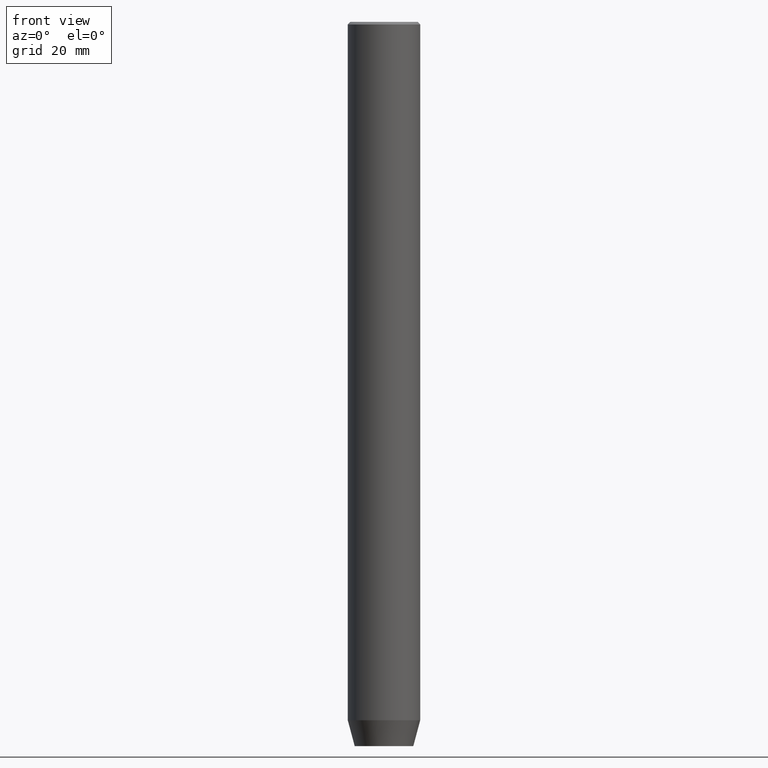
[diagram: clean part render]
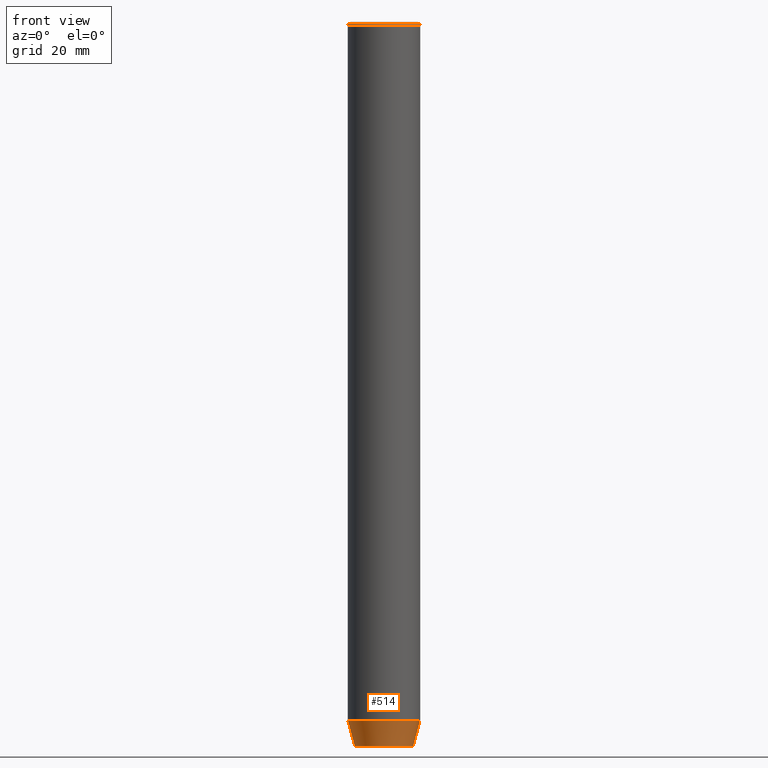
[diagram: same view with one face highlighted and labeled with its STEP entity id]
A machine part, front view. The second image highlights one B-rep face of the part: STEP entity #514.
In plain terms, the highlighted conical surface has half-angle 15 deg.
Its self-contained STEP definition (entity closure, byte-faithful):
#8 = DIRECTION ( 'NONE',  ( 1.000000000000000000, 0.000000000000000000, 0.000000000000000000 ) ) ;
#10 = DIRECTION ( 'NONE',  ( 1.000000000000000000, 0.000000000000000000, 0.000000000000000000 ) ) ;
#39 = CARTESIAN_POINT ( 'NONE',  ( 0.000000000000000000, 0.000000000000000000, -135.0000000000000000 ) ) ;
#61 = CARTESIAN_POINT ( 'NONE',  ( -5.660254037844382857, 7.752169791919238770E-16, -140.0000000000000000 ) ) ;
#77 = AXIS2_PLACEMENT_3D ( 'NONE', #39, #238, #10 ) ;
#85 = VECTOR ( 'NONE', #408, 1000.000000000000114 ) ;
#104 = LINE ( 'NONE', #450, #85 ) ;
#105 = EDGE_CURVE ( 'NONE', #363, #158, #541, .T. ) ;
#119 = ORIENTED_EDGE ( 'NONE', *, *, #257, .F. ) ;
#140 = DIRECTION ( 'NONE',  ( 0.2588190451025211836, 0.000000000000000000, 0.9659258262890680902 ) ) ;
#158 = VERTEX_POINT ( 'NONE', #316 ) ;
#160 = EDGE_CURVE ( 'NONE', #278, #363, #470, .T. ) ;
#167 = ORIENTED_EDGE ( 'NONE', *, *, #451, .F. ) ;
#191 = CARTESIAN_POINT ( 'NONE',  ( 0.000000000000000000, 0.000000000000000000, -140.0000000000000000 ) ) ;
#197 = CARTESIAN_POINT ( 'NONE',  ( -7.000000000000000000, 8.572527594031473190E-16, -135.0000000000000000 ) ) ;
#238 = DIRECTION ( 'NONE',  ( -0.000000000000000000, -0.000000000000000000, 1.000000000000000000 ) ) ;
#243 = CARTESIAN_POINT ( 'NONE',  ( 0.000000000000000000, 0.000000000000000000, -135.0000000000000000 ) ) ;
#257 = EDGE_CURVE ( 'NONE', #465, #158, #430, .T. ) ;
#278 = VERTEX_POINT ( 'NONE', #61 ) ;
#290 = AXIS2_PLACEMENT_3D ( 'NONE', #243, #335, #8 ) ;
#316 = CARTESIAN_POINT ( 'NONE',  ( 7.000000000000000000, 0.000000000000000000, -135.0000000000000000 ) ) ;
#335 = DIRECTION ( 'NONE',  ( -0.000000000000000000, -0.000000000000000000, 1.000000000000000000 ) ) ;
#336 = ORIENTED_EDGE ( 'NONE', *, *, #105, .T. ) ;
#363 = VERTEX_POINT ( 'NONE', #438 ) ;
#404 = DIRECTION ( 'NONE',  ( 1.000000000000000000, 0.000000000000000000, 0.000000000000000000 ) ) ;
#408 = DIRECTION ( 'NONE',  ( -0.2588190451025211836, 3.169619151431770488E-17, 0.9659258262890680902 ) ) ;
#418 = CONICAL_SURFACE ( 'NONE', #77, 7.000000000000000000, 0.2617993877991499074 ) ;
#430 = CIRCLE ( 'NONE', #290, 7.000000000000000000 ) ;
#438 = CARTESIAN_POINT ( 'NONE',  ( 5.660254037844382857, 0.000000000000000000, -140.0000000000000000 ) ) ;
#450 = CARTESIAN_POINT ( 'NONE',  ( -7.000000000000000000, 8.572527594031473190E-16, -135.0000000000000000 ) ) ;
#451 = EDGE_CURVE ( 'NONE', #278, #465, #104, .T. ) ;
#452 = CARTESIAN_POINT ( 'NONE',  ( 7.000000000000000000, 0.000000000000000000, -135.0000000000000000 ) ) ;
#456 = AXIS2_PLACEMENT_3D ( 'NONE', #191, #505, #404 ) ;
#465 = VERTEX_POINT ( 'NONE', #197 ) ;
#470 = CIRCLE ( 'NONE', #456, 5.660254037844382857 ) ;
#503 = EDGE_LOOP ( 'NONE', ( #167, #525, #336, #119 ) ) ;
#505 = DIRECTION ( 'NONE',  ( -0.000000000000000000, -0.000000000000000000, 1.000000000000000000 ) ) ;
#514 = ADVANCED_FACE ( 'NONE', ( #548 ), #418, .T. ) ;
#525 = ORIENTED_EDGE ( 'NONE', *, *, #160, .T. ) ;
#541 = LINE ( 'NONE', #452, #575 ) ;
#548 = FACE_OUTER_BOUND ( 'NONE', #503, .T. ) ;
#575 = VECTOR ( 'NONE', #140, 1000.000000000000114 ) ;